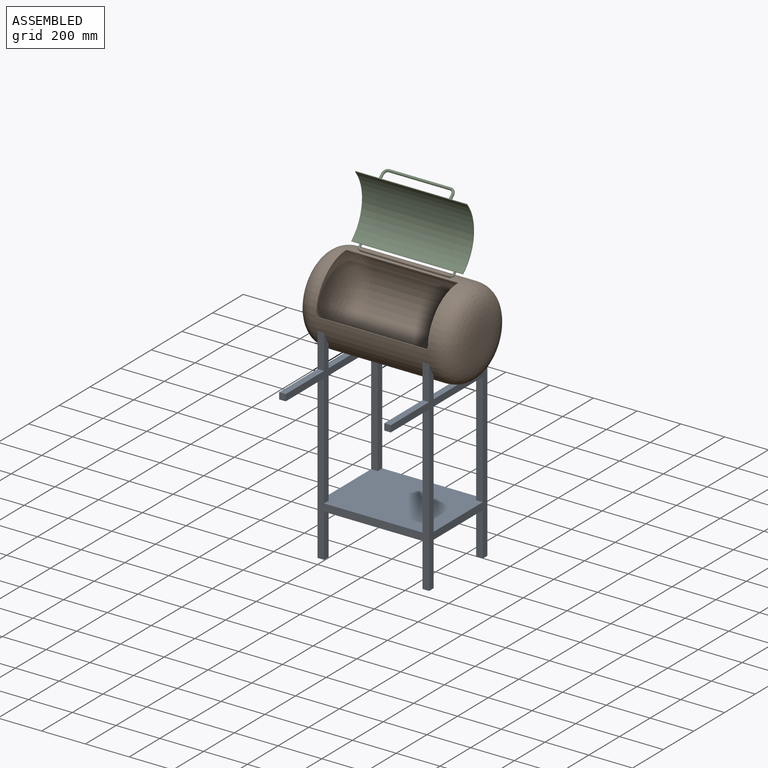
[diagram: assembled view]
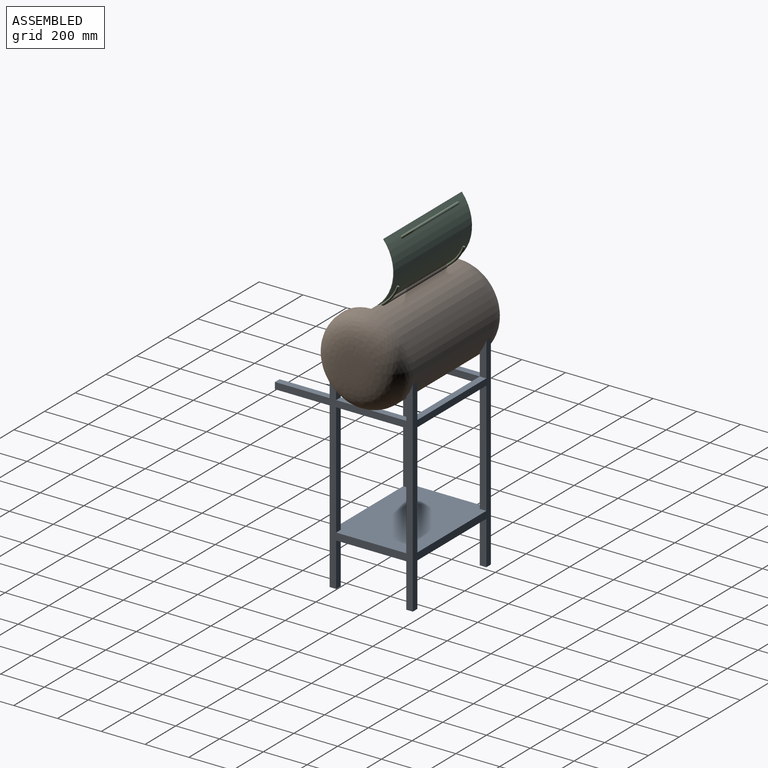
[diagram: assembled view, second angle]
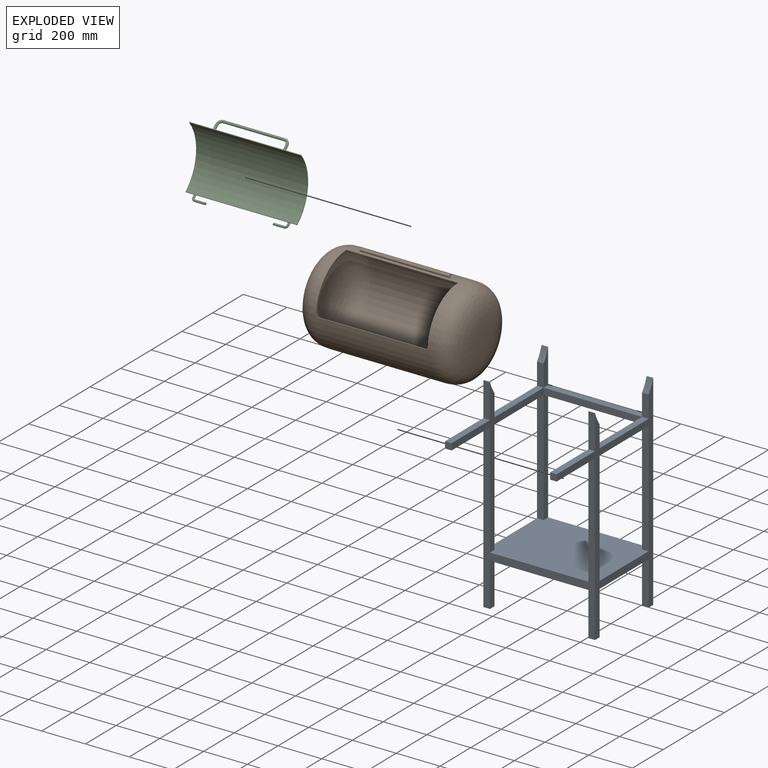
[diagram: exploded view]
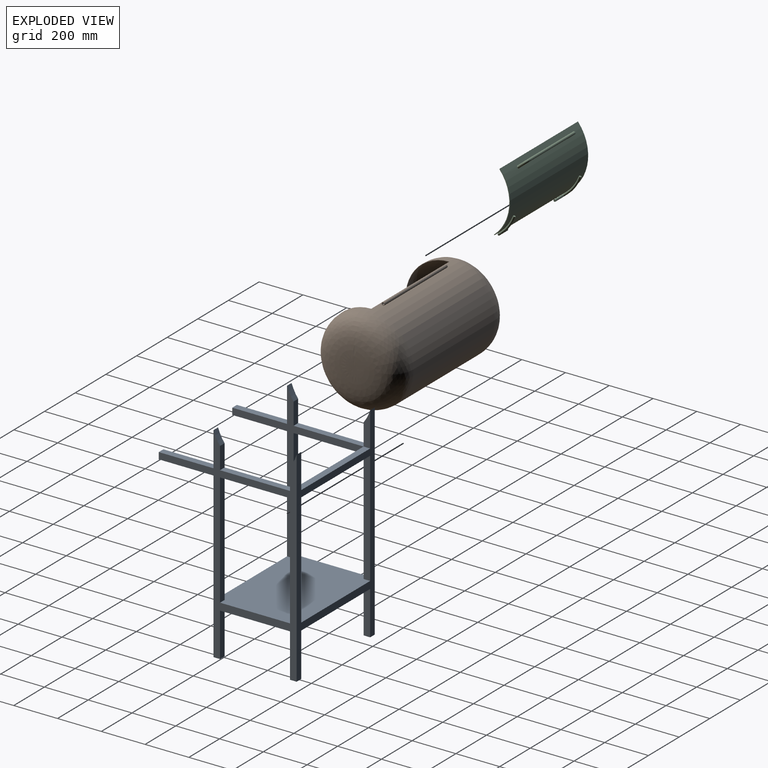
[diagram: exploded view, second angle]
ASSEMBLY  parts=3 mates=2
PART A: 59 faces, bbox 510x630x937.6 mm
  f0: plane 517x30mm, normal (0,1,0), area 15510mm2, adj f8,f23,f37,f54
  f1: plane 450x30mm, normal (0,1,0), area 13500mm2, adj f13,f14,f43,f44
  f2: plane 517x30mm, normal (0,-1,0), area 15510mm2, adj f13,f23,f37,f54
  f3: plane 750x510mm, normal (0,1,0), area 59850mm2, adj f13,f14,f20,f21,f22,f23,f30,f31
  f4: plane 517x30mm, normal (0,1,0), area 15510mm2, adj f9,f22,f37,f49
  f5: plane 100x30mm, normal (0,1,0), area 3000mm2, adj f16,f22,f48,f55
  f6: plane 100x30mm, normal (0,-1,0), area 3000mm2, adj f14,f22,f48,f58
  f7: plane 157.55x30mm, normal (0,1,0), area 4726.5mm2, adj f14,f22,f47,f58
  f8: plane 517x30mm, normal (1,0,0), area 15510mm2, adj f0,f28,f37,f44
  f9: plane 517x30mm, normal (-1,0,0), area 15510mm2, adj f4,f28,f37,f44
  f10: plane 450x30mm, normal (0,0,-1), area 13500mm2, adj f24,f25,f28,f38
  f11: plane 320x30mm, normal (0,0,-1), area 9600mm2, adj f23,f35,f36,f39
  f12: plane 320x30mm, normal (0,0,-1), area 9600mm2, adj f22,f33,f34,f41
  f13: plane 704.55x600mm, normal (1,0,0), area 37258.4mm2, adj f1,f2,f3,f19,f27,f37,f50,f51
  f14: plane 704.55x600mm, normal (-1,0,0), area 37258.4mm2, adj f1,f3,f6,f7,f17,f37,f45,f46
  f15: plane 157.55x30mm, normal (1,0,0), area 3748.4mm2, adj f18,f28,f43,f56
  f16: plane 157.55x30mm, normal (-1,0,0), area 3748.4mm2, adj f5,f28,f43,f55
  f17: plane 517x30mm, normal (0,-1,0), area 15510mm2, adj f14,f22,f37,f49
  f18: plane 100x30mm, normal (0,1,0), area 3000mm2, adj f15,f23,f53,f56
  f19: plane 100x30mm, normal (0,-1,0), area 3000mm2, adj f13,f23,f53,f57
  f20: plane 30x30mm, normal (0,0,-1), area 900mm2, adj f3,f22,f31,f34
  f21: plane 30x30mm, normal (0,0,-1), area 900mm2, adj f3,f23,f30,f36
  f22: plane 937.55x630mm, normal (1,0,0), area 81956.9mm2, adj f3,f4,f5,f6,f7,f12,f17,f20
  f23: plane 937.55x630mm, normal (-1,0,0), area 81956.9mm2, adj f0,f2,f3,f11,f18,f19,f21,f27
  f24: plane 200x30mm, normal (1,0,0), area 6000mm2, adj f10,f28,f29,f35
  f25: plane 200x30mm, normal (-1,0,0), area 6000mm2, adj f10,f26,f28,f33
  f26: plane 30x30mm, normal (0,0,-1), area 900mm2, adj f22,f25,f28,f33
  f27: plane 157.55x30mm, normal (0,1,0), area 4726.5mm2, adj f13,f23,f52,f57
  f28: plane 937.55x510mm, normal (0,-1,0), area 84603mm2, adj f8,f9,f10,f15,f16,f22,f23,f24
  f29: plane 30x30mm, normal (0,0,-1), area 900mm2, adj f23,f24,f28,f35
  f30: plane 200x30mm, normal (1,0,0), area 6000mm2, adj f3,f21,f32,f36
  f31: plane 200x30mm, normal (-1,0,0), area 6000mm2, adj f3,f20,f32,f34
  f32: plane 450x30mm, normal (0,0,-1), area 13500mm2, adj f3,f30,f31,f40
  f33: plane 200x30mm, normal (0,1,0), area 6000mm2, adj f12,f22,f25,f26
  f34: plane 200x30mm, normal (0,-1,0), area 6000mm2, adj f12,f20,f22,f31
  f35: plane 200x30mm, normal (0,1,0), area 6000mm2, adj f11,f23,f24,f29
  f36: plane 200x30mm, normal (0,-1,0), area 6000mm2, adj f11,f21,f23,f30
  f37: plane 510x380mm, normal (0,0,1), area 190200mm2, adj f0,f2,f3,f4,f8,f9,f13,f14
  f38: plane 450x30mm, normal (0,1,0), area 13500mm2, adj f10,f39,f41,f42
  f39: plane 320x30mm, normal (1,0,0), area 9600mm2, adj f11,f38,f40,f42
  f40: plane 450x30mm, normal (0,-1,0), area 13500mm2, adj f32,f39,f41,f42
  f41: plane 320x30mm, normal (-1,0,0), area 9600mm2, adj f12,f38,f40,f42
  f42: plane 450x320mm, normal (0,0,-1), area 144000mm2, adj f38,f39,f40,f41
  f43: plane 450x30mm, normal (0,0,1), area 13500mm2, adj f1,f15,f16,f28
  f44: plane 450x30mm, normal (0,0,-1), area 13500mm2, adj f1,f8,f9,f28
  f45: plane 30x30mm, normal (0,1,0), area 900mm2, adj f14,f22,f46,f47
  f46: plane 250x30mm, normal (0,0,-1), area 7500mm2, adj f3,f14,f22,f45
  f47: plane 250x30mm, normal (0,0,1), area 7500mm2, adj f7,f14,f22,f45
  f48: plane 320x30mm, normal (0,0,1), area 9600mm2, adj f5,f6,f14,f22
  f49: plane 320x30mm, normal (0,0,-1), area 9600mm2, adj f4,f14,f17,f22
  f50: plane 30x30mm, normal (0,1,0), area 900mm2, adj f13,f23,f51,f52
  f51: plane 250x30mm, normal (0,0,-1), area 7500mm2, adj f3,f13,f23,f50
  f52: plane 250x30mm, normal (0,0,1), area 7500mm2, adj f13,f23,f27,f50
  f53: plane 320x30mm, normal (0,0,1), area 9600mm2, adj f13,f18,f19,f23
  f54: plane 320x30mm, normal (0,0,-1), area 9600mm2, adj f0,f2,f13,f23
  f55: cylinder r=200mm len=57.55mm, axis (1,0,0), area 1955.6mm2, adj f5,f16,f22,f28
  f56: cylinder r=200mm len=57.55mm, axis (1,0,0), area 1955.6mm2, adj f15,f18,f23,f28
  f57: cylinder r=200mm len=57.55mm, axis (1,0,0), area 1955.6mm2, adj f13,f19,f23,f27
  f58: cylinder r=200mm len=57.55mm, axis (1,0,0), area 1955.6mm2, adj f6,f7,f14,f22
PART B: 14 faces, bbox 734x400x413 mm
  f0: cylinder r=198mm len=530mm, axis (-1,0,0), area 500738.5mm2, adj f1,f2,f3,f4,f5,f6
  f1: revolved ~396x396mm, area 188107.5mm2, adj f0
  f2: revolved ~396x396mm, area 188107.5mm2, adj f0
  f3: plane 200x200mm, normal (-1,0,0), area 625.2mm2, adj f0,f4,f6,f7
  f4: plane 510x2mm, normal (0,0,1), area 1020mm2, adj f0,f3,f5,f7
  f5: plane 200x200mm, normal (1,0,0), area 625.2mm2, adj f0,f4,f6,f7
  f6: plane 510x2mm, normal (0,-1,0), area 1020mm2, adj f0,f3,f5,f7
  f7: cylinder r=200mm len=530mm, axis (-1,0,0), area 505262.5mm2, adj f3,f4,f5,f6,f8,f9,f11,f12
  f8: revolved ~400x400mm, area 192574.7mm2, adj f7
  f9: revolved ~400x400mm, area 192574.7mm2, adj f7
  f10: cylinder r=5mm len=410mm, axis (-1,0,0), area 12880.5mm2, adj f12,f13
  f11: cylinder r=7mm len=410mm, axis (-1,0,0), area 17498.1mm2, adj f7,f12,f13
  f12: plane 14x14mm, normal (1,0,0), area 75.4mm2, adj f7,f10,f11
  f13: plane 14x14mm, normal (-1,0,0), area 75.4mm2, adj f7,f10,f11
PART C: 24 faces, bbox 510x485.4x454.5 mm
  f0: cylinder r=200mm len=510mm, axis (-1,0,0), area 157257.7mm2, adj f1,f2,f4,f5,f6,f7,f11,f12
  f1: plane 510x3mm, normal (0,1,0), area 1530mm2, adj f0,f3,f4,f5,f22
  f2: plane 510x3mm, normal (0,0,-1), area 1530mm2, adj f0,f3,f4,f5
  f3: cylinder r=197mm len=510mm, axis (-1,0,0), area 157817.9mm2, adj f1,f2,f4,f5
  f4: plane 200x200mm, normal (1,0,0), area 935.4mm2, adj f0,f1,f2,f3
  f5: plane 200x200mm, normal (-1,0,0), area 935.4mm2, adj f0,f1,f2,f3
  f6: cylinder r=6mm len=33.27mm, axis (0,-1,0), area 1218mm2, adj f0,f8
  f7: cylinder r=6mm len=33.27mm, axis (0,1,0), area 1218mm2, adj f0,f10
  f8: torus R=20mm, axis (0,0,-1), area 1184.4mm2, adj f6,f9
  f9: cylinder r=6mm len=280mm, axis (-1,0,0), area 10555.8mm2, adj f8,f10
  f10: torus R=20mm, axis (0,0,-1), area 1184.4mm2, adj f7,f9
  f11: plane 10x8.72mm, normal (0,-0.87,-0.49), area 78.5mm2, adj f0,f12
  f12: torus R=204.92mm, axis (-1,0,0), area 3249.7mm2, adj f0,f11,f14
  f13: plane 10x10mm, normal (-1,0,0), area 78.5mm2, adj f16
  f14: cylinder r=5mm len=10mm, axis (0,1,0), area 314.2mm2, adj f12,f15
  f15: torus R=10mm, axis (0,0,1), area 493.5mm2, adj f14,f16
  f16: cylinder r=5mm len=50mm, axis (-1,0,0), area 1570.8mm2, adj f13,f15
  f17: torus R=204.92mm, axis (-1,0,0), area 41010.7mm2, adj f0,f19,f20
  f18: plane 10x9.9mm, normal (1,0,0), area 78.4mm2, adj f22,f23
  f19: plane 10x8.64mm, normal (0,-0.87,-0.49), area 78.4mm2, adj f0,f17
  f20: cylinder r=5mm len=10mm, axis (0,1,0), area 294.1mm2, adj f17,f21,f22
  f21: torus R=10mm, axis (0,0,-1), area 462mm2, adj f20,f22,f23
  f22: plane 61x21mm, normal (0,0,-1), area 150.7mm2, adj f1,f18,f20,f21,f23
  f23: cylinder r=5mm len=50mm, axis (1,0,0), area 1470.6mm2, adj f18,f21,f22
PLACE A rot(axis=(0,0,1),180deg) t=(255,190,0)mm
PLACE B t=(620,190,1000)mm
PLACE C rot(axis=(-1,0,0),140deg) t=(0,93.61,1375.82)mm
MATE fastened B.f0 <-> A.f55  axis (-1,0,0) through (510,190,1000)mm
MATE revolute C.f23 <-> B.f10  axis (1,0,0) through (50,210,1206)mm
